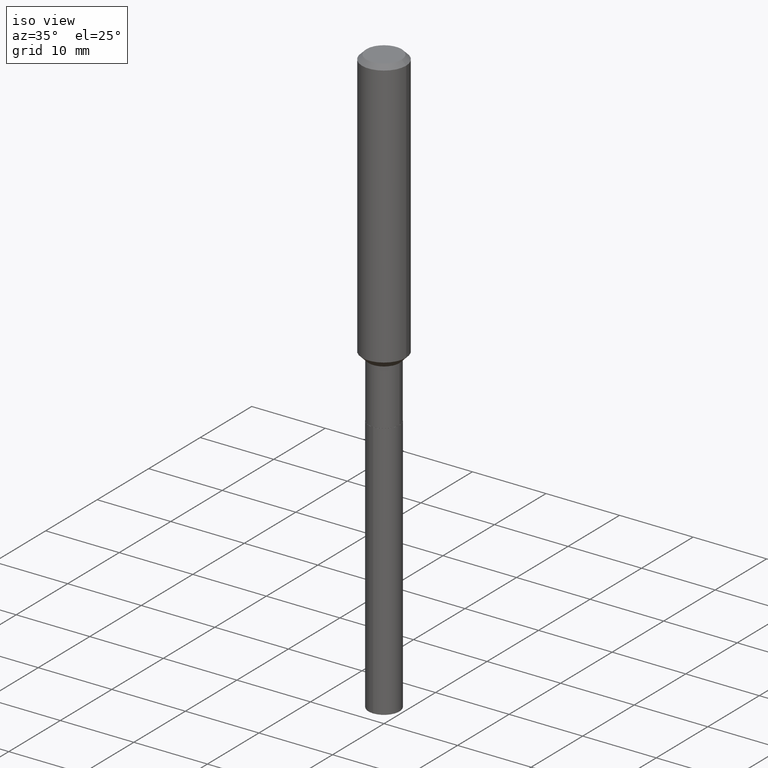
[diagram: clean part render]
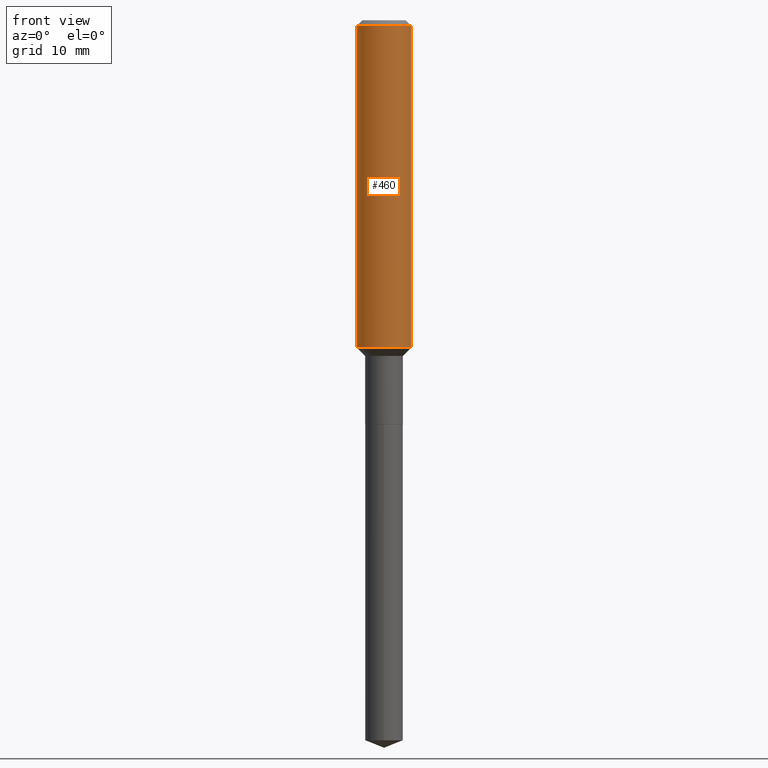
[diagram: tour spotlight — one face highlighted and labeled with its STEP entity id]
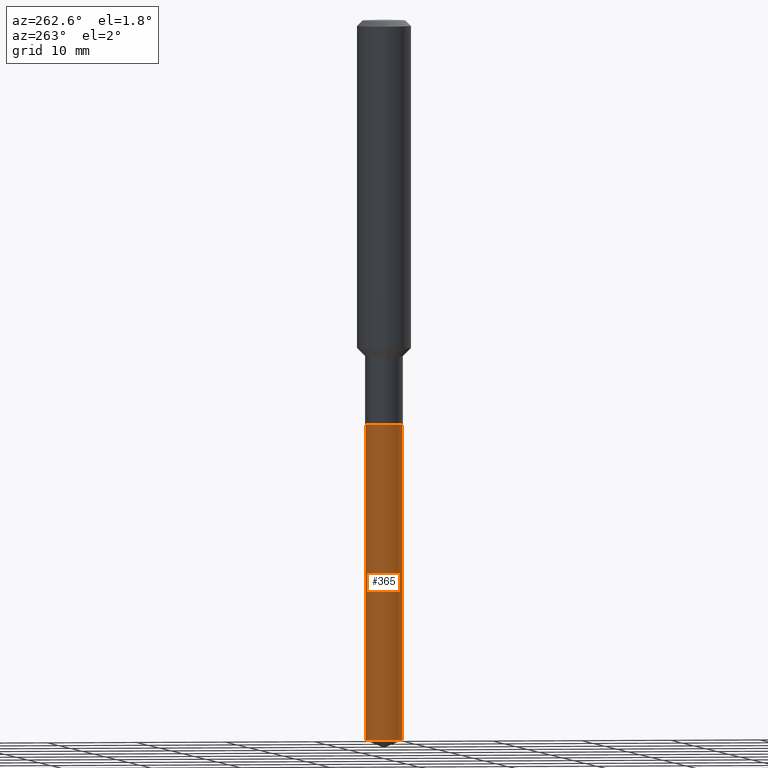
[diagram: tour spotlight — one face highlighted and labeled with its STEP entity id]
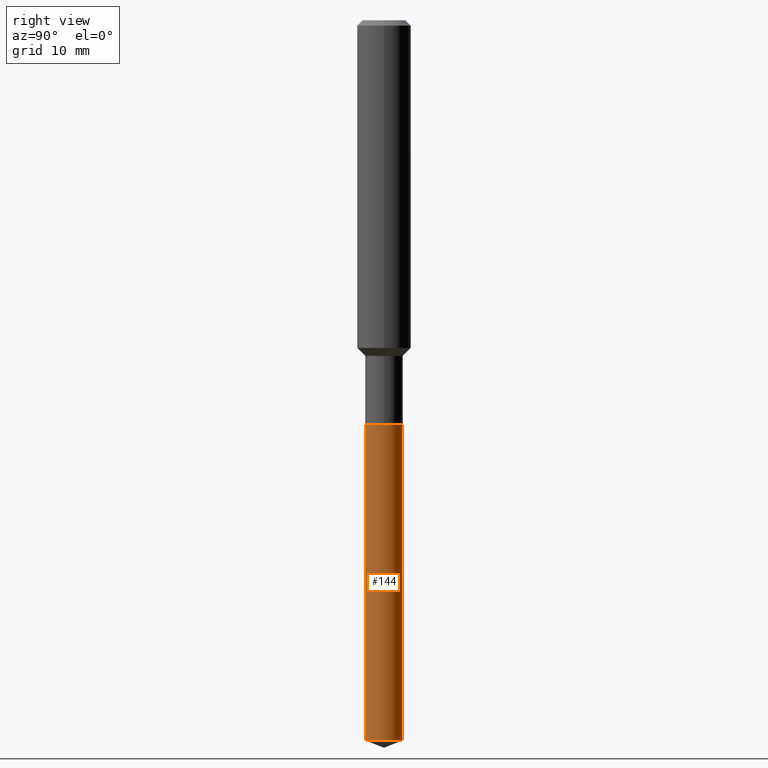
[diagram: tour spotlight — one face highlighted and labeled with its STEP entity id]
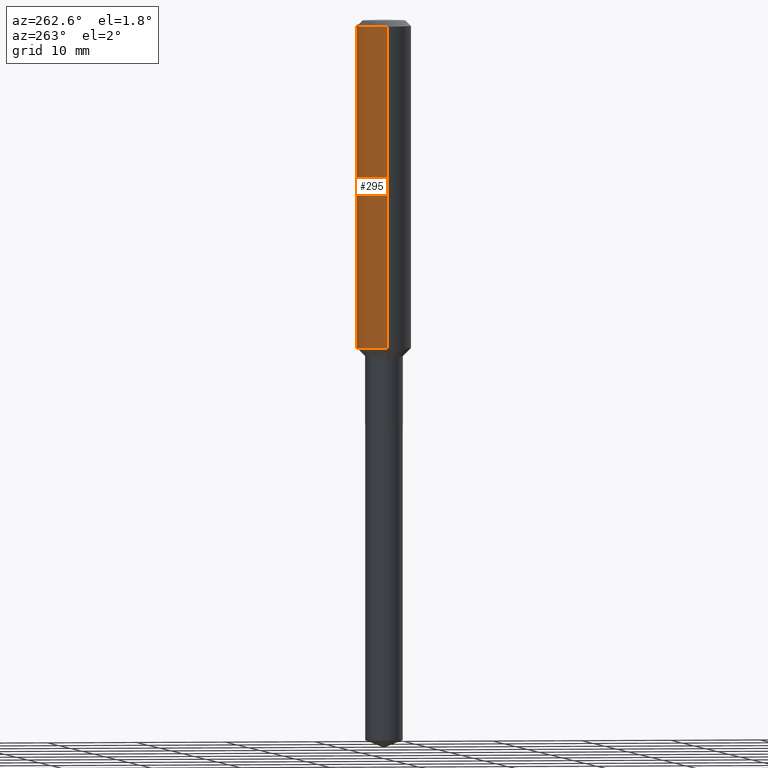
[diagram: tour spotlight — one face highlighted and labeled with its STEP entity id]
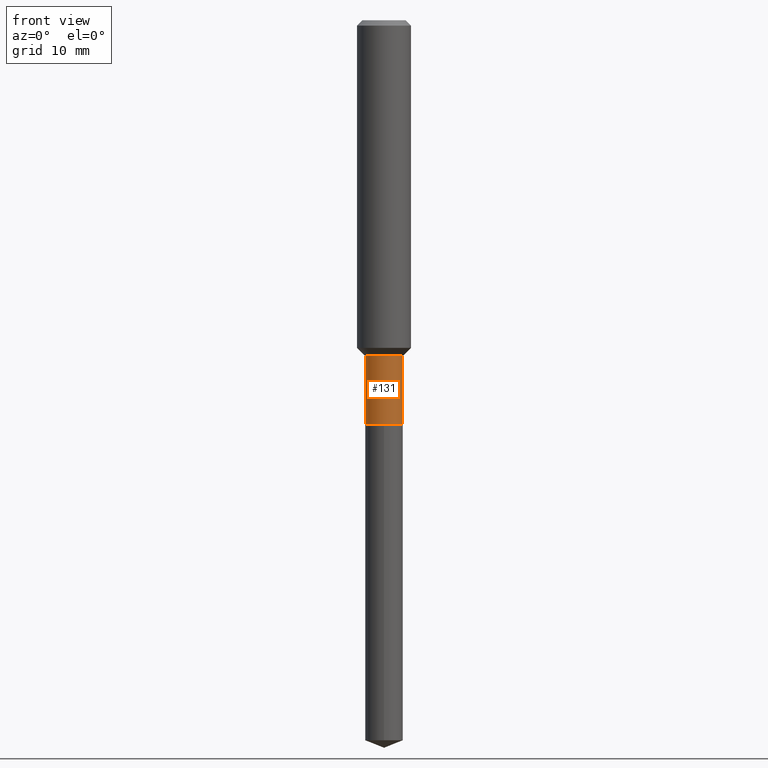
[diagram: tour spotlight — one face highlighted and labeled with its STEP entity id]
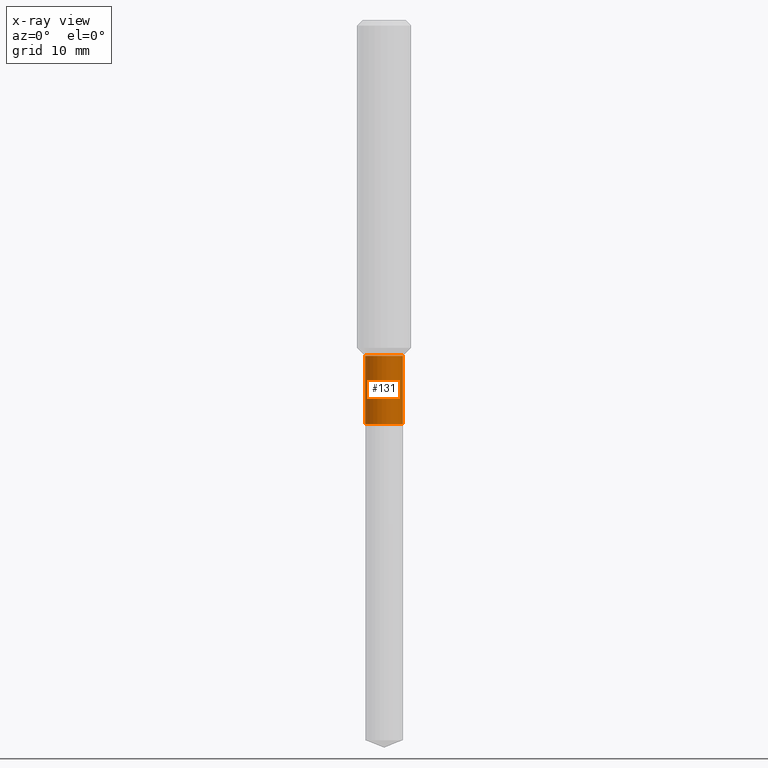
[diagram: x-ray of the same camera — body ghosted, this tour face saturated]
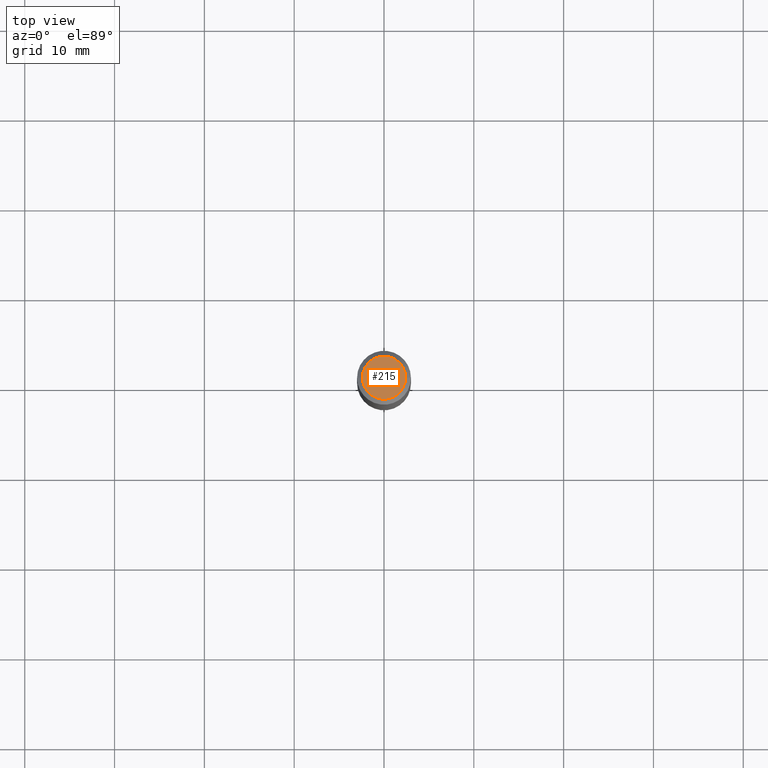
[diagram: tour spotlight — one face highlighted and labeled with its STEP entity id]
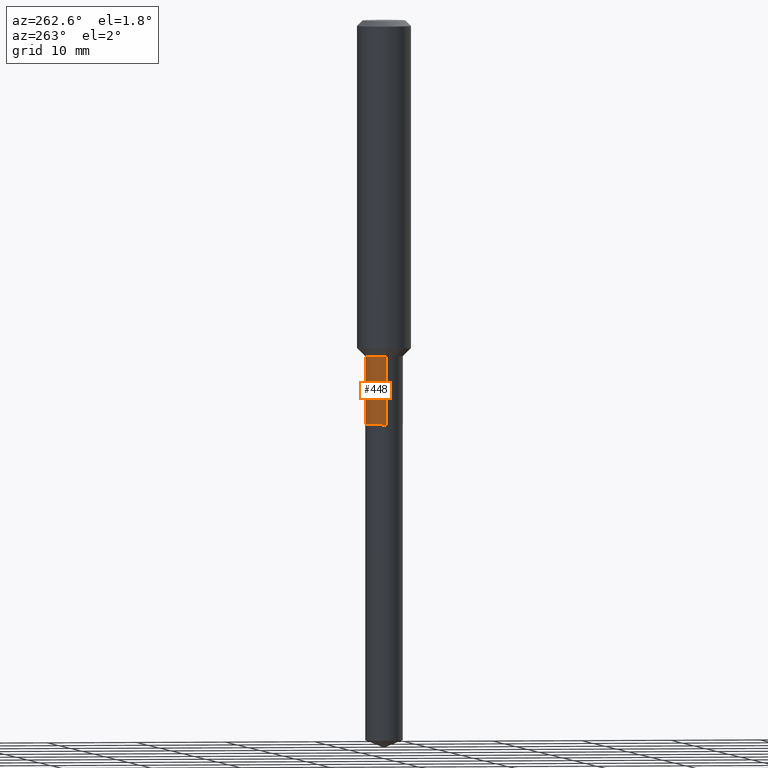
[diagram: tour spotlight — one face highlighted and labeled with its STEP entity id]
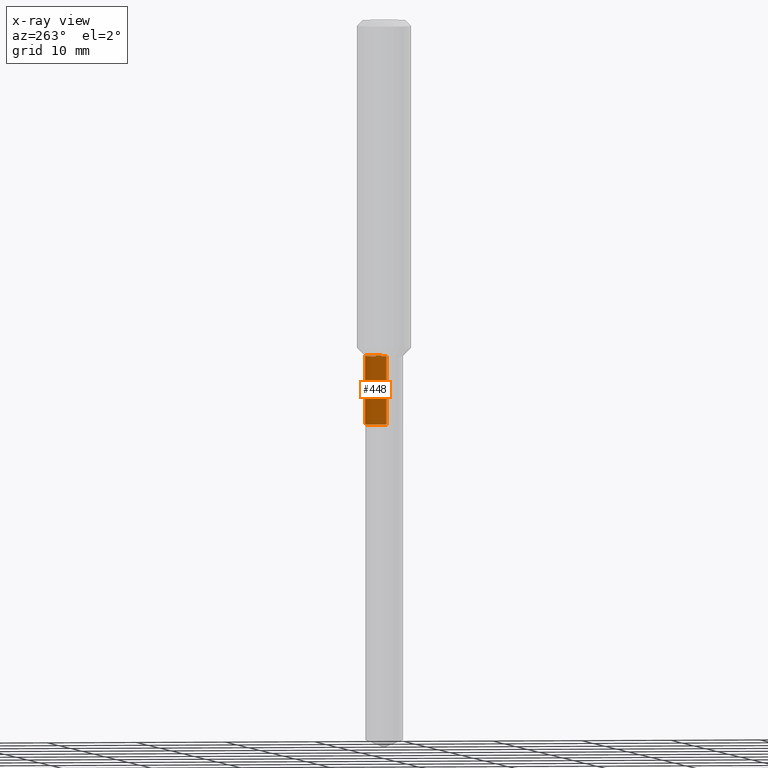
[diagram: x-ray of the same camera — body ghosted, this tour face saturated]
A machine part: a face-by-face anatomy tour. The part has 17 B-rep faces; the first image is the clean iso view, then the 7 largest visible faces are spotlighted one at a time (largest first), each with its STEP entity span.

Face 1 — front view, entity #460. In plain terms, the highlighted cylindrical surface (edge-blend (fillet) strip) has radius 2.9997 mm, axis along (-0, 0, 1).
Definition (entity closure, byte-faithful):
#46 = CARTESIAN_POINT ( 'NONE',  ( 0.000000000000000000, 0.000000000000000000, 0.000000000000000000 ) ) ;
#49 = DIRECTION ( 'NONE',  ( -2.445468806185136877E-29, 3.491481338843145188E-15, 1.000000000000000000 ) ) ;
#57 = CARTESIAN_POINT ( 'NONE',  ( -0.1181000000000000799, 8.391509709326788873E-16, -5.809262341591047988E-30 ) ) ;
#63 = ORIENTED_EDGE ( 'NONE', *, *, #148, .T. ) ;
#76 = ORIENTED_EDGE ( 'NONE', *, *, #350, .F. ) ;
#86 = DIRECTION ( 'NONE',  ( 1.000000000000000000, -6.982962677686266711E-15, 4.876176775795936353E-29 ) ) ;
#90 = VERTEX_POINT ( 'NONE', #197 ) ;
#124 = DIRECTION ( 'NONE',  ( 1.000000000000000000, -6.982962677686270655E-15, 0.000000000000000000 ) ) ;
#130 = VERTEX_POINT ( 'NONE', #159 ) ;
#138 = AXIS2_PLACEMENT_3D ( 'NONE', #46, #294, #86 ) ;
#148 = EDGE_CURVE ( 'NONE', #130, #151, #309, .T. ) ;
#151 = VERTEX_POINT ( 'NONE', #193 ) ;
#152 = CIRCLE ( 'NONE', #202, 0.1180999999999999966 ) ;
#159 = CARTESIAN_POINT ( 'NONE',  ( 0.1181000000000001632, -5.838105946679623371E-15, -1.435900000000000176 ) ) ;
#161 = VECTOR ( 'NONE', #49, 39.37007874015748143 ) ;
#172 = DIRECTION ( 'NONE',  ( 1.000000000000000000, -6.982962677686266711E-15, 0.000000000000000000 ) ) ;
#193 = CARTESIAN_POINT ( 'NONE',  ( 0.1180999999999999966, -9.071566814582237199E-16, -0.02362000000000014088 ) ) ;
#197 = CARTESIAN_POINT ( 'NONE',  ( -0.1180999999999999966, -1.708792450901494916E-15, -0.02362000000000014088 ) ) ;
#202 = AXIS2_PLACEMENT_3D ( 'NONE', #408, #251, #172 ) ;
#203 = CARTESIAN_POINT ( 'NONE',  ( 3.511448658801237790E-29, -5.013418054444873531E-15, -1.435900000000000176 ) ) ;
#223 = LINE ( 'NONE', #57, #271 ) ;
#251 = DIRECTION ( 'NONE',  ( -2.445468806185136597E-29, 3.491481338843145583E-15, 1.000000000000000000 ) ) ;
#255 = CYLINDRICAL_SURFACE ( 'NONE', #138, 0.1181000000000000799 ) ;
#270 = CARTESIAN_POINT ( 'NONE',  ( 0.1181000000000000799, -8.246878922347486570E-16, 5.758764772215004644E-30 ) ) ;
#271 = VECTOR ( 'NONE', #401, 39.37007874015748143 ) ;
#288 = EDGE_CURVE ( 'NONE', #307, #130, #470, .T. ) ;
#294 = DIRECTION ( 'NONE',  ( -2.445468806185136597E-29, 3.491481338843145583E-15, 1.000000000000000000 ) ) ;
#307 = VERTEX_POINT ( 'NONE', #362 ) ;
#309 = LINE ( 'NONE', #270, #161 ) ;
#331 = EDGE_CURVE ( 'NONE', #307, #90, #223, .T. ) ;
#333 = AXIS2_PLACEMENT_3D ( 'NONE', #203, #472, #124 ) ;
#350 = EDGE_CURVE ( 'NONE', #90, #151, #152, .T. ) ;
#362 = CARTESIAN_POINT ( 'NONE',  ( -0.1181000000000001632, -4.174267083512194545E-15, -1.435900000000000176 ) ) ;
#400 = ORIENTED_EDGE ( 'NONE', *, *, #288, .T. ) ;
#401 = DIRECTION ( 'NONE',  ( -2.445468806185136877E-29, 3.491481338843145188E-15, 1.000000000000000000 ) ) ;
#408 = CARTESIAN_POINT ( 'NONE',  ( 5.776197320209327532E-31, -8.246878922347559293E-17, -0.02362000000000014088 ) ) ;
#430 = ORIENTED_EDGE ( 'NONE', *, *, #331, .F. ) ;
#432 = FACE_OUTER_BOUND ( 'NONE', #452, .T. ) ;
#452 = EDGE_LOOP ( 'NONE', ( #430, #400, #63, #76 ) ) ;
#460 = ADVANCED_FACE ( 'NONE', ( #432 ), #255, .T. ) ;
#470 = CIRCLE ( 'NONE', #333, 0.1181000000000001632 ) ;
#472 = DIRECTION ( 'NONE',  ( -2.445468806185136597E-29, 3.491481338843145583E-15, 1.000000000000000000 ) ) ;

Face 2 — auxiliary view, entity #365. In plain terms, the highlighted cylindrical surface (edge-blend (fillet) strip) has radius 2.1006 mm, axis along (-0, 0, 1).
Definition (entity closure, byte-faithful):
#40 = AXIS2_PLACEMENT_3D ( 'NONE', #134, #106, #444 ) ;
#47 = EDGE_CURVE ( 'NONE', #51, #410, #447, .T. ) ;
#51 = VERTEX_POINT ( 'NONE', #220 ) ;
#54 = DIRECTION ( 'NONE',  ( -2.445498752953222356E-29, 3.491438453366782686E-15, 1.000000000000000000 ) ) ;
#61 = CARTESIAN_POINT ( 'NONE',  ( 4.332637083918206987E-29, -6.185857488028401870E-15, -1.771700000000000497 ) ) ;
#66 = AXIS2_PLACEMENT_3D ( 'NONE', #351, #320, #394 ) ;
#70 = EDGE_CURVE ( 'NONE', #410, #292, #434, .T. ) ;
#75 = CARTESIAN_POINT ( 'NONE',  ( 5.876188424736460136E-16, 0.08269999999999382012, -1.771700000000000719 ) ) ;
#106 = DIRECTION ( 'NONE',  ( -2.445498752953222356E-29, 3.491438453366782686E-15, 1.000000000000000000 ) ) ;
#134 = CARTESIAN_POINT ( 'NONE',  ( 4.332637083918206987E-29, -6.185857488028401870E-15, -1.771700000000000497 ) ) ;
#141 = ORIENTED_EDGE ( 'NONE', *, *, #274, .F. ) ;
#165 = CARTESIAN_POINT ( 'NONE',  ( -5.774910134446108980E-16, -0.08270000000000618523, -1.771700000000000053 ) ) ;
#177 = AXIS2_PLACEMENT_3D ( 'NONE', #61, #314, #326 ) ;
#187 = CIRCLE ( 'NONE', #177, 0.08269999999999999574 ) ;
#210 = FACE_OUTER_BOUND ( 'NONE', #406, .T. ) ;
#219 = VECTOR ( 'NONE', #54, 39.37007874015748143 ) ;
#220 = CARTESIAN_POINT ( 'NONE',  ( 5.876188424736798360E-16, 0.08269999999998896290, -3.156423603666645761 ) ) ;
#248 = CYLINDRICAL_SURFACE ( 'NONE', #40, 0.08269999999999999574 ) ;
#274 = EDGE_CURVE ( 'NONE', #383, #292, #187, .T. ) ;
#281 = ORIENTED_EDGE ( 'NONE', *, *, #319, .F. ) ;
#292 = VERTEX_POINT ( 'NONE', #441 ) ;
#305 = DIRECTION ( 'NONE',  ( -2.445498752953222356E-29, 3.491438453366782686E-15, 1.000000000000000000 ) ) ;
#314 = DIRECTION ( 'NONE',  ( -2.445498752953222356E-29, 3.491438453366782686E-15, 1.000000000000000000 ) ) ;
#315 = ORIENTED_EDGE ( 'NONE', *, *, #47, .T. ) ;
#319 = EDGE_CURVE ( 'NONE', #51, #383, #341, .T. ) ;
#320 = DIRECTION ( 'NONE',  ( -2.445498752953222356E-29, 3.491438453366782686E-15, 1.000000000000000000 ) ) ;
#326 = DIRECTION ( 'NONE',  ( -6.982962677686265922E-15, -1.000000000000000000, 3.303322846026920670E-15 ) ) ;
#335 = CARTESIAN_POINT ( 'NONE',  ( 5.876188424736800332E-16, 0.08269999999999382012, -1.771700000000000719 ) ) ;
#341 = LINE ( 'NONE', #75, #475 ) ;
#348 = ORIENTED_EDGE ( 'NONE', *, *, #70, .T. ) ;
#351 = CARTESIAN_POINT ( 'NONE',  ( 7.718976929869879912E-29, -1.102053472515475002E-14, -3.156423603666644873 ) ) ;
#365 = ADVANCED_FACE ( 'NONE', ( #210 ), #248, .T. ) ;
#383 = VERTEX_POINT ( 'NONE', #335 ) ;
#394 = DIRECTION ( 'NONE',  ( -6.982962677686265922E-15, -1.000000000000000000, 6.606645692053841341E-15 ) ) ;
#406 = EDGE_LOOP ( 'NONE', ( #281, #315, #348, #141 ) ) ;
#410 = VERTEX_POINT ( 'NONE', #485 ) ;
#434 = LINE ( 'NONE', #165, #219 ) ;
#441 = CARTESIAN_POINT ( 'NONE',  ( -5.774910134446108980E-16, -0.08270000000000618523, -1.771700000000000053 ) ) ;
#444 = DIRECTION ( 'NONE',  ( -6.982962677686265922E-15, -1.000000000000000000, 3.303322846026920670E-15 ) ) ;
#447 = CIRCLE ( 'NONE', #66, 0.08269999999999999574 ) ;
#475 = VECTOR ( 'NONE', #305, 39.37007874015748143 ) ;
#485 = CARTESIAN_POINT ( 'NONE',  ( -5.774910134445767798E-16, -0.08270000000001100082, -3.156423603666644429 ) ) ;

Face 3 — right view, entity #144. In plain terms, the highlighted cylindrical surface (edge-blend (fillet) strip) has radius 2.1006 mm, axis along (-0, 0, 1).
Definition (entity closure, byte-faithful):
#42 = DIRECTION ( 'NONE',  ( -2.445498752953222356E-29, 3.491438453366782686E-15, 1.000000000000000000 ) ) ;
#51 = VERTEX_POINT ( 'NONE', #220 ) ;
#54 = DIRECTION ( 'NONE',  ( -2.445498752953222356E-29, 3.491438453366782686E-15, 1.000000000000000000 ) ) ;
#70 = EDGE_CURVE ( 'NONE', #410, #292, #434, .T. ) ;
#72 = CARTESIAN_POINT ( 'NONE',  ( 7.718976929869879912E-29, -1.102053472515475002E-14, -3.156423603666644873 ) ) ;
#73 = AXIS2_PLACEMENT_3D ( 'NONE', #388, #42, #188 ) ;
#75 = CARTESIAN_POINT ( 'NONE',  ( 5.876188424736460136E-16, 0.08269999999999382012, -1.771700000000000719 ) ) ;
#81 = CYLINDRICAL_SURFACE ( 'NONE', #73, 0.08269999999999999574 ) ;
#107 = CIRCLE ( 'NONE', #170, 0.08269999999999999574 ) ;
#120 = ORIENTED_EDGE ( 'NONE', *, *, #319, .T. ) ;
#144 = ADVANCED_FACE ( 'NONE', ( #428 ), #81, .T. ) ;
#165 = CARTESIAN_POINT ( 'NONE',  ( -5.774910134446108980E-16, -0.08270000000000618523, -1.771700000000000053 ) ) ;
#170 = AXIS2_PLACEMENT_3D ( 'NONE', #72, #328, #183 ) ;
#173 = ORIENTED_EDGE ( 'NONE', *, *, #70, .F. ) ;
#183 = DIRECTION ( 'NONE',  ( -6.982962677686265922E-15, -1.000000000000000000, 6.606645692053841341E-15 ) ) ;
#188 = DIRECTION ( 'NONE',  ( -6.982962677686265922E-15, -1.000000000000000000, 3.303322846026920670E-15 ) ) ;
#189 = EDGE_LOOP ( 'NONE', ( #286, #120, #222, #173 ) ) ;
#218 = DIRECTION ( 'NONE',  ( -6.982962677686265922E-15, -1.000000000000000000, 3.303322846026920670E-15 ) ) ;
#219 = VECTOR ( 'NONE', #54, 39.37007874015748143 ) ;
#220 = CARTESIAN_POINT ( 'NONE',  ( 5.876188424736798360E-16, 0.08269999999998896290, -3.156423603666645761 ) ) ;
#222 = ORIENTED_EDGE ( 'NONE', *, *, #310, .F. ) ;
#254 = AXIS2_PLACEMENT_3D ( 'NONE', #324, #479, #218 ) ;
#286 = ORIENTED_EDGE ( 'NONE', *, *, #407, .T. ) ;
#292 = VERTEX_POINT ( 'NONE', #441 ) ;
#305 = DIRECTION ( 'NONE',  ( -2.445498752953222356E-29, 3.491438453366782686E-15, 1.000000000000000000 ) ) ;
#310 = EDGE_CURVE ( 'NONE', #292, #383, #313, .T. ) ;
#313 = CIRCLE ( 'NONE', #254, 0.08269999999999999574 ) ;
#319 = EDGE_CURVE ( 'NONE', #51, #383, #341, .T. ) ;
#324 = CARTESIAN_POINT ( 'NONE',  ( 4.332637083918206987E-29, -6.185857488028401870E-15, -1.771700000000000497 ) ) ;
#328 = DIRECTION ( 'NONE',  ( -2.445498752953222356E-29, 3.491438453366782686E-15, 1.000000000000000000 ) ) ;
#335 = CARTESIAN_POINT ( 'NONE',  ( 5.876188424736800332E-16, 0.08269999999999382012, -1.771700000000000719 ) ) ;
#341 = LINE ( 'NONE', #75, #475 ) ;
#383 = VERTEX_POINT ( 'NONE', #335 ) ;
#388 = CARTESIAN_POINT ( 'NONE',  ( 4.332637083918206987E-29, -6.185857488028401870E-15, -1.771700000000000497 ) ) ;
#407 = EDGE_CURVE ( 'NONE', #410, #51, #107, .T. ) ;
#410 = VERTEX_POINT ( 'NONE', #485 ) ;
#428 = FACE_OUTER_BOUND ( 'NONE', #189, .T. ) ;
#434 = LINE ( 'NONE', #165, #219 ) ;
#441 = CARTESIAN_POINT ( 'NONE',  ( -5.774910134446108980E-16, -0.08270000000000618523, -1.771700000000000053 ) ) ;
#475 = VECTOR ( 'NONE', #305, 39.37007874015748143 ) ;
#479 = DIRECTION ( 'NONE',  ( -2.445498752953222356E-29, 3.491438453366782686E-15, 1.000000000000000000 ) ) ;
#485 = CARTESIAN_POINT ( 'NONE',  ( -5.774910134445767798E-16, -0.08270000000001100082, -3.156423603666644429 ) ) ;

Face 4 — auxiliary view, entity #295. In plain terms, the highlighted cylindrical surface (edge-blend (fillet) strip) has radius 2.9997 mm, axis along (-0, 0, 1).
Definition (entity closure, byte-faithful):
#17 = CARTESIAN_POINT ( 'NONE',  ( 3.511448658801237790E-29, -5.013418054444873531E-15, -1.435900000000000176 ) ) ;
#49 = DIRECTION ( 'NONE',  ( -2.445468806185136877E-29, 3.491481338843145188E-15, 1.000000000000000000 ) ) ;
#56 = DIRECTION ( 'NONE',  ( 1.000000000000000000, -6.982962677686270655E-15, 0.000000000000000000 ) ) ;
#57 = CARTESIAN_POINT ( 'NONE',  ( -0.1181000000000000799, 8.391509709326788873E-16, -5.809262341591047988E-30 ) ) ;
#58 = DIRECTION ( 'NONE',  ( -2.445468806185136597E-29, 3.491481338843145583E-15, 1.000000000000000000 ) ) ;
#90 = VERTEX_POINT ( 'NONE', #197 ) ;
#97 = FACE_OUTER_BOUND ( 'NONE', #445, .T. ) ;
#105 = ORIENTED_EDGE ( 'NONE', *, *, #148, .F. ) ;
#112 = CIRCLE ( 'NONE', #477, 0.1181000000000001632 ) ;
#130 = VERTEX_POINT ( 'NONE', #159 ) ;
#148 = EDGE_CURVE ( 'NONE', #130, #151, #309, .T. ) ;
#151 = VERTEX_POINT ( 'NONE', #193 ) ;
#159 = CARTESIAN_POINT ( 'NONE',  ( 0.1181000000000001632, -5.838105946679623371E-15, -1.435900000000000176 ) ) ;
#161 = VECTOR ( 'NONE', #49, 39.37007874015748143 ) ;
#193 = CARTESIAN_POINT ( 'NONE',  ( 0.1180999999999999966, -9.071566814582237199E-16, -0.02362000000000014088 ) ) ;
#197 = CARTESIAN_POINT ( 'NONE',  ( -0.1180999999999999966, -1.708792450901494916E-15, -0.02362000000000014088 ) ) ;
#199 = DIRECTION ( 'NONE',  ( 1.000000000000000000, -6.982962677686266711E-15, 4.876176775795936353E-29 ) ) ;
#211 = CIRCLE ( 'NONE', #489, 0.1180999999999999966 ) ;
#223 = LINE ( 'NONE', #57, #271 ) ;
#242 = CYLINDRICAL_SURFACE ( 'NONE', #458, 0.1181000000000000799 ) ;
#244 = DIRECTION ( 'NONE',  ( -2.445468806185136597E-29, 3.491481338843145583E-15, 1.000000000000000000 ) ) ;
#247 = EDGE_CURVE ( 'NONE', #151, #90, #211, .T. ) ;
#260 = ORIENTED_EDGE ( 'NONE', *, *, #291, .T. ) ;
#270 = CARTESIAN_POINT ( 'NONE',  ( 0.1181000000000000799, -8.246878922347486570E-16, 5.758764772215004644E-30 ) ) ;
#271 = VECTOR ( 'NONE', #401, 39.37007874015748143 ) ;
#282 = DIRECTION ( 'NONE',  ( -2.445468806185136597E-29, 3.491481338843145583E-15, 1.000000000000000000 ) ) ;
#291 = EDGE_CURVE ( 'NONE', #130, #307, #112, .T. ) ;
#295 = ADVANCED_FACE ( 'NONE', ( #97 ), #242, .T. ) ;
#307 = VERTEX_POINT ( 'NONE', #362 ) ;
#309 = LINE ( 'NONE', #270, #161 ) ;
#321 = DIRECTION ( 'NONE',  ( 1.000000000000000000, -6.982962677686266711E-15, 0.000000000000000000 ) ) ;
#331 = EDGE_CURVE ( 'NONE', #307, #90, #223, .T. ) ;
#345 = CARTESIAN_POINT ( 'NONE',  ( 5.776197320209327532E-31, -8.246878922347559293E-17, -0.02362000000000014088 ) ) ;
#362 = CARTESIAN_POINT ( 'NONE',  ( -0.1181000000000001632, -4.174267083512194545E-15, -1.435900000000000176 ) ) ;
#391 = ORIENTED_EDGE ( 'NONE', *, *, #331, .T. ) ;
#399 = CARTESIAN_POINT ( 'NONE',  ( 0.000000000000000000, 0.000000000000000000, 0.000000000000000000 ) ) ;
#401 = DIRECTION ( 'NONE',  ( -2.445468806185136877E-29, 3.491481338843145188E-15, 1.000000000000000000 ) ) ;
#403 = ORIENTED_EDGE ( 'NONE', *, *, #247, .F. ) ;
#445 = EDGE_LOOP ( 'NONE', ( #260, #391, #403, #105 ) ) ;
#458 = AXIS2_PLACEMENT_3D ( 'NONE', #399, #58, #199 ) ;
#477 = AXIS2_PLACEMENT_3D ( 'NONE', #17, #282, #56 ) ;
#489 = AXIS2_PLACEMENT_3D ( 'NONE', #345, #244, #321 ) ;

Face 5 — front view, entity #131. An x-ray twin of the same camera follows (body ghosted, this face saturated) — the face is partly hidden behind the body. In plain terms, the highlighted cylindrical surface (edge-blend (fillet) strip) has radius 2.1006 mm, axis along (-0, 0, 1).
Definition (entity closure, byte-faithful):
#5 = DIRECTION ( 'NONE',  ( 1.000000000000000000, -6.982962677686263555E-15, 0.000000000000000000 ) ) ;
#20 = CIRCLE ( 'NONE', #82, 0.08269999999999999574 ) ;
#23 = EDGE_CURVE ( 'NONE', #91, #176, #185, .T. ) ;
#39 = ORIENTED_EDGE ( 'NONE', *, *, #23, .F. ) ;
#44 = DIRECTION ( 'NONE',  ( 1.000000000000000000, -6.982962677686261189E-15, 0.000000000000000000 ) ) ;
#45 = CARTESIAN_POINT ( 'NONE',  ( -0.08269999999999996798, -5.072945278125848507E-15, -1.471300000000000274 ) ) ;
#52 = CIRCLE ( 'NONE', #386, 0.08269999999999996798 ) ;
#62 = CARTESIAN_POINT ( 'NONE',  ( 0.08269999999999998186, -5.774910134446541868E-16, 4.032598193583238570E-30 ) ) ;
#67 = ORIENTED_EDGE ( 'NONE', *, *, #206, .T. ) ;
#78 = CARTESIAN_POINT ( 'NONE',  ( -0.08269999999999998186, 5.876188424736027248E-16, -4.067959319640806203E-30 ) ) ;
#82 = AXIS2_PLACEMENT_3D ( 'NONE', #225, #389, #44 ) ;
#91 = VERTEX_POINT ( 'NONE', #474 ) ;
#118 = DIRECTION ( 'NONE',  ( -2.445468806185136597E-29, 3.491481338843145583E-15, 1.000000000000000000 ) ) ;
#131 = ADVANCED_FACE ( 'NONE', ( #168 ), #153, .T. ) ;
#153 = CYLINDRICAL_SURFACE ( 'NONE', #373, 0.08269999999999998186 ) ;
#164 = VECTOR ( 'NONE', #392, 39.37007874015748143 ) ;
#166 = ORIENTED_EDGE ( 'NONE', *, *, #230, .F. ) ;
#168 = FACE_OUTER_BOUND ( 'NONE', #267, .T. ) ;
#176 = VERTEX_POINT ( 'NONE', #45 ) ;
#180 = CARTESIAN_POINT ( 'NONE',  ( 0.08269999999999996798, -5.714507507284574607E-15, -1.471300000000000274 ) ) ;
#185 = LINE ( 'NONE', #78, #164 ) ;
#191 = DIRECTION ( 'NONE',  ( -2.445468806185136597E-29, 3.491481338843145583E-15, 1.000000000000000000 ) ) ;
#196 = VECTOR ( 'NONE', #205, 39.37007874015748143 ) ;
#205 = DIRECTION ( 'NONE',  ( -2.445468806185136877E-29, 3.491481338843145188E-15, 1.000000000000000000 ) ) ;
#206 = EDGE_CURVE ( 'NONE', #91, #354, #20, .T. ) ;
#225 = CARTESIAN_POINT ( 'NONE',  ( 4.331414349515115307E-29, -6.184111747358981944E-15, -1.771200000000000552 ) ) ;
#230 = EDGE_CURVE ( 'NONE', #176, #468, #52, .T. ) ;
#256 = ORIENTED_EDGE ( 'NONE', *, *, #369, .T. ) ;
#266 = DIRECTION ( 'NONE',  ( 1.000000000000000000, -6.982962677686267499E-15, 4.876176775795936353E-29 ) ) ;
#267 = EDGE_LOOP ( 'NONE', ( #39, #67, #256, #166 ) ) ;
#306 = CARTESIAN_POINT ( 'NONE',  ( 0.000000000000000000, 0.000000000000000000, 0.000000000000000000 ) ) ;
#329 = CARTESIAN_POINT ( 'NONE',  ( 0.08269999999999999574, -6.761602760803635046E-15, -1.771200000000000552 ) ) ;
#354 = VERTEX_POINT ( 'NONE', #329 ) ;
#369 = EDGE_CURVE ( 'NONE', #354, #468, #404, .T. ) ;
#373 = AXIS2_PLACEMENT_3D ( 'NONE', #306, #118, #266 ) ;
#386 = AXIS2_PLACEMENT_3D ( 'NONE', #411, #191, #5 ) ;
#389 = DIRECTION ( 'NONE',  ( -2.445468806185136597E-29, 3.491481338843145583E-15, 1.000000000000000000 ) ) ;
#392 = DIRECTION ( 'NONE',  ( -2.445468806185136877E-29, 3.491481338843145188E-15, 1.000000000000000000 ) ) ;
#404 = LINE ( 'NONE', #62, #196 ) ;
#411 = CARTESIAN_POINT ( 'NONE',  ( 3.598018254540192216E-29, -5.137016493839921505E-15, -1.471300000000000274 ) ) ;
#468 = VERTEX_POINT ( 'NONE', #180 ) ;
#474 = CARTESIAN_POINT ( 'NONE',  ( -0.08269999999999999574, -5.072945278125848507E-15, -1.771200000000000552 ) ) ;

Face 6 — top view, entity #215. In plain terms, the highlighted planar face has unit normal (0, -0, -1).
Definition (entity closure, byte-faithful):
#14 = FACE_OUTER_BOUND ( 'NONE', #104, .T. ) ;
#18 = DIRECTION ( 'NONE',  ( 1.000000000000000000, -6.982962677686267499E-15, 4.875432709231658792E-29 ) ) ;
#19 = DIRECTION ( 'NONE',  ( 2.438088387897960049E-29, -3.491481338843145188E-15, -1.000000000000000000 ) ) ;
#27 = ORIENTED_EDGE ( 'NONE', *, *, #99, .T. ) ;
#43 = VERTEX_POINT ( 'NONE', #464 ) ;
#84 = CIRCLE ( 'NONE', #122, 0.09447999999999998066 ) ;
#98 = PLANE ( 'NONE',  #146 ) ;
#99 = EDGE_CURVE ( 'NONE', #43, #327, #423, .T. ) ;
#104 = EDGE_LOOP ( 'NONE', ( #27, #311 ) ) ;
#122 = AXIS2_PLACEMENT_3D ( 'NONE', #346, #340, #150 ) ;
#146 = AXIS2_PLACEMENT_3D ( 'NONE', #204, #19, #201 ) ;
#150 = DIRECTION ( 'NONE',  ( 1.000000000000000000, -6.982962677686267499E-15, 4.875432709231658792E-29 ) ) ;
#178 = AXIS2_PLACEMENT_3D ( 'NONE', #347, #361, #18 ) ;
#201 = DIRECTION ( 'NONE',  ( -1.000000000000000000, 6.982962677686265922E-15, -4.876176775795935793E-29 ) ) ;
#204 = CARTESIAN_POINT ( 'NONE',  ( 2.358133508849003952E-46, -3.366789680499277518E-32, -9.642868896486260050E-18 ) ) ;
#215 = ADVANCED_FACE ( 'NONE', ( #14 ), #98, .F. ) ;
#265 = CARTESIAN_POINT ( 'NONE',  ( 0.09447999999999998066, -7.704367267948738690E-16, -1.928573779296752193E-17 ) ) ;
#311 = ORIENTED_EDGE ( 'NONE', *, *, #488, .T. ) ;
#327 = VERTEX_POINT ( 'NONE', #265 ) ;
#340 = DIRECTION ( 'NONE',  ( -2.445468806185136597E-29, 3.491481338843145583E-15, 1.000000000000000000 ) ) ;
#346 = CARTESIAN_POINT ( 'NONE',  ( 4.716267017698007905E-46, -6.733579360998555036E-32, -1.928573779297252010E-17 ) ) ;
#347 = CARTESIAN_POINT ( 'NONE',  ( 4.716267017698007905E-46, -6.733579360998555036E-32, -1.928573779297252010E-17 ) ) ;
#361 = DIRECTION ( 'NONE',  ( -2.445468806185136597E-29, 3.491481338843145583E-15, 1.000000000000000000 ) ) ;
#423 = CIRCLE ( 'NONE', #178, 0.09447999999999998066 ) ;
#464 = CARTESIAN_POINT ( 'NONE',  ( -0.09447999999999998066, 7.009847083995354710E-16, -1.928573779297727792E-17 ) ) ;
#488 = EDGE_CURVE ( 'NONE', #327, #43, #84, .T. ) ;

Face 7 — auxiliary view, entity #448. An x-ray twin of the same camera follows (body ghosted, this face saturated) — the face is partly hidden behind the body. In plain terms, the highlighted cylindrical surface (edge-blend (fillet) strip) has radius 2.1006 mm, axis along (-0, 0, 1).
Definition (entity closure, byte-faithful):
#8 = DIRECTION ( 'NONE',  ( -2.445468806185136597E-29, 3.491481338843145583E-15, 1.000000000000000000 ) ) ;
#15 = AXIS2_PLACEMENT_3D ( 'NONE', #380, #41, #181 ) ;
#23 = EDGE_CURVE ( 'NONE', #91, #176, #185, .T. ) ;
#26 = FACE_OUTER_BOUND ( 'NONE', #69, .T. ) ;
#37 = DIRECTION ( 'NONE',  ( 1.000000000000000000, -6.982962677686263555E-15, 0.000000000000000000 ) ) ;
#41 = DIRECTION ( 'NONE',  ( -2.445468806185136597E-29, 3.491481338843145583E-15, 1.000000000000000000 ) ) ;
#45 = CARTESIAN_POINT ( 'NONE',  ( -0.08269999999999996798, -5.072945278125848507E-15, -1.471300000000000274 ) ) ;
#48 = DIRECTION ( 'NONE',  ( -2.445468806185136597E-29, 3.491481338843145583E-15, 1.000000000000000000 ) ) ;
#50 = ORIENTED_EDGE ( 'NONE', *, *, #92, .F. ) ;
#55 = AXIS2_PLACEMENT_3D ( 'NONE', #190, #8, #155 ) ;
#62 = CARTESIAN_POINT ( 'NONE',  ( 0.08269999999999998186, -5.774910134446541868E-16, 4.032598193583238570E-30 ) ) ;
#69 = EDGE_LOOP ( 'NONE', ( #435, #227, #50, #449 ) ) ;
#78 = CARTESIAN_POINT ( 'NONE',  ( -0.08269999999999998186, 5.876188424736027248E-16, -4.067959319640806203E-30 ) ) ;
#91 = VERTEX_POINT ( 'NONE', #474 ) ;
#92 = EDGE_CURVE ( 'NONE', #468, #176, #360, .T. ) ;
#125 = EDGE_CURVE ( 'NONE', #354, #91, #261, .T. ) ;
#140 = AXIS2_PLACEMENT_3D ( 'NONE', #279, #48, #37 ) ;
#155 = DIRECTION ( 'NONE',  ( 1.000000000000000000, -6.982962677686261189E-15, 0.000000000000000000 ) ) ;
#164 = VECTOR ( 'NONE', #392, 39.37007874015748143 ) ;
#176 = VERTEX_POINT ( 'NONE', #45 ) ;
#180 = CARTESIAN_POINT ( 'NONE',  ( 0.08269999999999996798, -5.714507507284574607E-15, -1.471300000000000274 ) ) ;
#181 = DIRECTION ( 'NONE',  ( 1.000000000000000000, -6.982962677686267499E-15, 4.876176775795936353E-29 ) ) ;
#185 = LINE ( 'NONE', #78, #164 ) ;
#190 = CARTESIAN_POINT ( 'NONE',  ( 4.331414349515115307E-29, -6.184111747358981944E-15, -1.771200000000000552 ) ) ;
#196 = VECTOR ( 'NONE', #205, 39.37007874015748143 ) ;
#205 = DIRECTION ( 'NONE',  ( -2.445468806185136877E-29, 3.491481338843145188E-15, 1.000000000000000000 ) ) ;
#227 = ORIENTED_EDGE ( 'NONE', *, *, #23, .T. ) ;
#261 = CIRCLE ( 'NONE', #55, 0.08269999999999999574 ) ;
#279 = CARTESIAN_POINT ( 'NONE',  ( 3.598018254540192216E-29, -5.137016493839921505E-15, -1.471300000000000274 ) ) ;
#329 = CARTESIAN_POINT ( 'NONE',  ( 0.08269999999999999574, -6.761602760803635046E-15, -1.771200000000000552 ) ) ;
#354 = VERTEX_POINT ( 'NONE', #329 ) ;
#360 = CIRCLE ( 'NONE', #140, 0.08269999999999996798 ) ;
#369 = EDGE_CURVE ( 'NONE', #354, #468, #404, .T. ) ;
#380 = CARTESIAN_POINT ( 'NONE',  ( 0.000000000000000000, 0.000000000000000000, 0.000000000000000000 ) ) ;
#392 = DIRECTION ( 'NONE',  ( -2.445468806185136877E-29, 3.491481338843145188E-15, 1.000000000000000000 ) ) ;
#404 = LINE ( 'NONE', #62, #196 ) ;
#435 = ORIENTED_EDGE ( 'NONE', *, *, #125, .T. ) ;
#448 = ADVANCED_FACE ( 'NONE', ( #26 ), #463, .T. ) ;
#449 = ORIENTED_EDGE ( 'NONE', *, *, #369, .F. ) ;
#463 = CYLINDRICAL_SURFACE ( 'NONE', #15, 0.08269999999999998186 ) ;
#468 = VERTEX_POINT ( 'NONE', #180 ) ;
#474 = CARTESIAN_POINT ( 'NONE',  ( -0.08269999999999999574, -5.072945278125848507E-15, -1.771200000000000552 ) ) ;